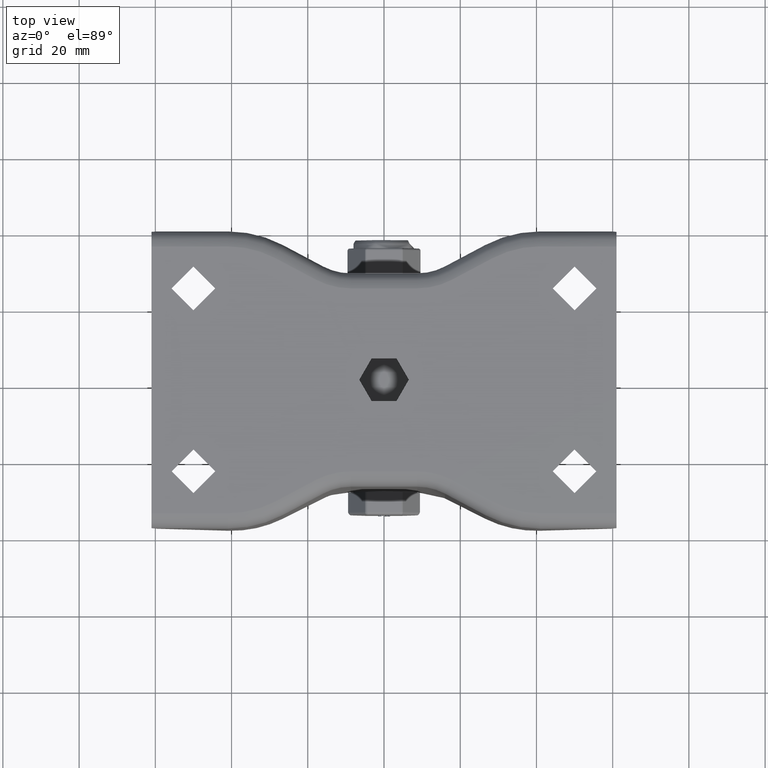
[diagram: clean part render]
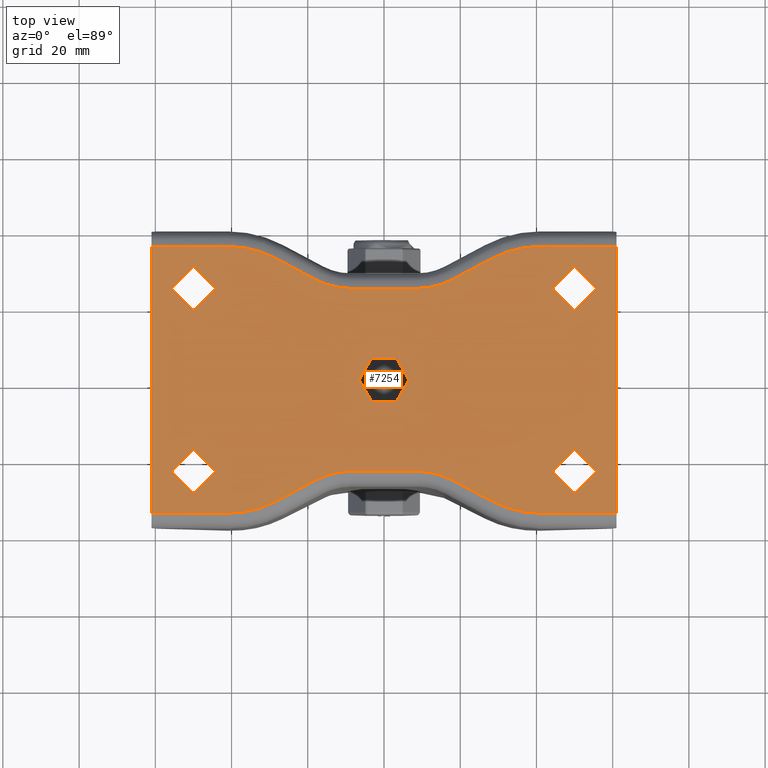
[diagram: same view with one face highlighted and labeled with its STEP entity id]
A machine part, top view. The second image highlights one B-rep face of the part: STEP entity #7254.
In plain terms, the highlighted planar face has unit normal (0, 0, -1).
Its self-contained STEP definition (entity closure, byte-faithful):
#699=FACE_BOUND('',#1503,.T.);
#700=FACE_BOUND('',#1504,.T.);
#701=FACE_BOUND('',#1505,.T.);
#702=FACE_BOUND('',#1506,.T.);
#703=FACE_BOUND('',#1507,.T.);
#746=CIRCLE('',#7764,5.75);
#748=CIRCLE('',#7767,5.75);
#757=CIRCLE('',#7805,26.5);
#760=CIRCLE('',#7810,19.5);
#763=CIRCLE('',#7815,19.5);
#766=CIRCLE('',#7820,26.5);
#769=CIRCLE('',#7825,6.5);
#774=CIRCLE('',#7833,5.75);
#776=CIRCLE('',#7836,5.75);
#783=CIRCLE('',#7856,26.5);
#784=CIRCLE('',#7857,19.5);
#785=CIRCLE('',#7858,19.5);
#786=CIRCLE('',#7859,26.5);
#787=CIRCLE('',#7860,6.5);
#1066=FACE_OUTER_BOUND('',#1502,.T.);
#1502=EDGE_LOOP('',(#5065,#5066,#5067,#5068,#5069,#5070,#5071,#5072,#5073,
#5074,#5075,#5076,#5077,#5078,#5079,#5080,#5081,#5082,#5083,#5084));
#1503=EDGE_LOOP('',(#5085,#5086));
#1504=EDGE_LOOP('',(#5087));
#1505=EDGE_LOOP('',(#5088));
#1506=EDGE_LOOP('',(#5089));
#1507=EDGE_LOOP('',(#5090));
#1978=LINE('',#10682,#2529);
#1979=LINE('',#10690,#2530);
#1980=LINE('',#10698,#2531);
#1981=LINE('',#10706,#2532);
#1982=LINE('',#10715,#2533);
#1994=LINE('',#10763,#2545);
#2010=LINE('',#10836,#2561);
#2011=LINE('',#10838,#2562);
#2012=LINE('',#10842,#2563);
#2013=LINE('',#10846,#2564);
#2014=LINE('',#10850,#2565);
#2015=LINE('',#10853,#2566);
#2529=VECTOR('',#8640,10.);
#2530=VECTOR('',#8651,10.);
#2531=VECTOR('',#8662,10.);
#2532=VECTOR('',#8673,10.);
#2533=VECTOR('',#8686,10.);
#2545=VECTOR('',#8732,1.);
#2561=VECTOR('',#8778,1.);
#2562=VECTOR('',#8779,10.);
#2563=VECTOR('',#8782,10.);
#2564=VECTOR('',#8785,10.);
#2565=VECTOR('',#8788,10.);
#2566=VECTOR('',#8791,10.);
#3050=VERTEX_POINT('',#10545);
#3052=VERTEX_POINT('',#10551);
#3082=VERTEX_POINT('',#10679);
#3083=VERTEX_POINT('',#10681);
#3084=VERTEX_POINT('',#10685);
#3085=VERTEX_POINT('',#10689);
#3086=VERTEX_POINT('',#10693);
#3087=VERTEX_POINT('',#10697);
#3088=VERTEX_POINT('',#10701);
#3089=VERTEX_POINT('',#10705);
#3090=VERTEX_POINT('',#10709);
#3091=VERTEX_POINT('',#10713);
#3093=VERTEX_POINT('',#10718);
#3094=VERTEX_POINT('',#10720);
#3105=VERTEX_POINT('',#10746);
#3107=VERTEX_POINT('',#10752);
#3110=VERTEX_POINT('',#10762);
#3128=VERTEX_POINT('',#10835);
#3129=VERTEX_POINT('',#10837);
#3130=VERTEX_POINT('',#10839);
#3131=VERTEX_POINT('',#10841);
#3132=VERTEX_POINT('',#10843);
#3133=VERTEX_POINT('',#10845);
#3134=VERTEX_POINT('',#10847);
#3135=VERTEX_POINT('',#10849);
#3136=VERTEX_POINT('',#10851);
#3748=EDGE_CURVE('',#3050,#3050,#746,.T.);
#3751=EDGE_CURVE('',#3052,#3052,#748,.T.);
#3802=EDGE_CURVE('',#3083,#3082,#1978,.T.);
#3804=EDGE_CURVE('',#3084,#3083,#757,.T.);
#3806=EDGE_CURVE('',#3085,#3084,#1979,.T.);
#3808=EDGE_CURVE('',#3086,#3085,#760,.T.);
#3810=EDGE_CURVE('',#3087,#3086,#1980,.T.);
#3812=EDGE_CURVE('',#3088,#3087,#763,.T.);
#3814=EDGE_CURVE('',#3089,#3088,#1981,.T.);
#3816=EDGE_CURVE('',#3090,#3089,#766,.T.);
#3819=EDGE_CURVE('',#3091,#3090,#1982,.T.);
#3821=EDGE_CURVE('',#3093,#3094,#769,.T.);
#3834=EDGE_CURVE('',#3105,#3105,#774,.T.);
#3837=EDGE_CURVE('',#3107,#3107,#776,.T.);
#3841=EDGE_CURVE('',#3110,#3091,#1994,.T.);
#3868=EDGE_CURVE('',#3082,#3128,#2010,.T.);
#3869=EDGE_CURVE('',#3129,#3128,#2011,.T.);
#3870=EDGE_CURVE('',#3130,#3129,#783,.T.);
#3871=EDGE_CURVE('',#3131,#3130,#2012,.T.);
#3872=EDGE_CURVE('',#3132,#3131,#784,.T.);
#3873=EDGE_CURVE('',#3133,#3132,#2013,.T.);
#3874=EDGE_CURVE('',#3134,#3133,#785,.T.);
#3875=EDGE_CURVE('',#3135,#3134,#2014,.T.);
#3876=EDGE_CURVE('',#3136,#3135,#786,.T.);
#3877=EDGE_CURVE('',#3110,#3136,#2015,.T.);
#3878=EDGE_CURVE('',#3093,#3094,#787,.T.);
#5065=ORIENTED_EDGE('',*,*,#3841,.T.);
#5066=ORIENTED_EDGE('',*,*,#3819,.T.);
#5067=ORIENTED_EDGE('',*,*,#3816,.T.);
#5068=ORIENTED_EDGE('',*,*,#3814,.T.);
#5069=ORIENTED_EDGE('',*,*,#3812,.T.);
#5070=ORIENTED_EDGE('',*,*,#3810,.T.);
#5071=ORIENTED_EDGE('',*,*,#3808,.T.);
#5072=ORIENTED_EDGE('',*,*,#3806,.T.);
#5073=ORIENTED_EDGE('',*,*,#3804,.T.);
#5074=ORIENTED_EDGE('',*,*,#3802,.T.);
#5075=ORIENTED_EDGE('',*,*,#3868,.T.);
#5076=ORIENTED_EDGE('',*,*,#3869,.F.);
#5077=ORIENTED_EDGE('',*,*,#3870,.F.);
#5078=ORIENTED_EDGE('',*,*,#3871,.F.);
#5079=ORIENTED_EDGE('',*,*,#3872,.F.);
#5080=ORIENTED_EDGE('',*,*,#3873,.F.);
#5081=ORIENTED_EDGE('',*,*,#3874,.F.);
#5082=ORIENTED_EDGE('',*,*,#3875,.F.);
#5083=ORIENTED_EDGE('',*,*,#3876,.F.);
#5084=ORIENTED_EDGE('',*,*,#3877,.F.);
#5085=ORIENTED_EDGE('',*,*,#3878,.T.);
#5086=ORIENTED_EDGE('',*,*,#3821,.F.);
#5087=ORIENTED_EDGE('',*,*,#3751,.F.);
#5088=ORIENTED_EDGE('',*,*,#3748,.F.);
#5089=ORIENTED_EDGE('',*,*,#3834,.T.);
#5090=ORIENTED_EDGE('',*,*,#3837,.T.);
#7064=PLANE('',#7855);
#7254=ADVANCED_FACE('',(#1066,#699,#700,#701,#702,#703),#7064,.F.);
#7764=AXIS2_PLACEMENT_3D('',#10547,#8531,#8532);
#7767=AXIS2_PLACEMENT_3D('',#10553,#8538,#8539);
#7805=AXIS2_PLACEMENT_3D('',#10686,#8645,#8646);
#7810=AXIS2_PLACEMENT_3D('',#10694,#8656,#8657);
#7815=AXIS2_PLACEMENT_3D('',#10702,#8667,#8668);
#7820=AXIS2_PLACEMENT_3D('',#10710,#8678,#8679);
#7825=AXIS2_PLACEMENT_3D('',#10721,#8690,#8691);
#7833=AXIS2_PLACEMENT_3D('',#10748,#8714,#8715);
#7836=AXIS2_PLACEMENT_3D('',#10754,#8721,#8722);
#7855=AXIS2_PLACEMENT_3D('',#10834,#8776,#8777);
#7856=AXIS2_PLACEMENT_3D('',#10840,#8780,#8781);
#7857=AXIS2_PLACEMENT_3D('',#10844,#8783,#8784);
#7858=AXIS2_PLACEMENT_3D('',#10848,#8786,#8787);
#7859=AXIS2_PLACEMENT_3D('',#10852,#8789,#8790);
#7860=AXIS2_PLACEMENT_3D('',#10854,#8792,#8793);
#8531=DIRECTION('center_axis',(0.,0.,1.));
#8532=DIRECTION('ref_axis',(1.,0.,0.));
#8538=DIRECTION('center_axis',(0.,0.,1.));
#8539=DIRECTION('ref_axis',(1.,0.,0.));
#8640=DIRECTION('',(-1.,0.,0.));
#8645=DIRECTION('center_axis',(0.,0.,1.));
#8646=DIRECTION('ref_axis',(0.241921895599667,0.970295726275997,0.));
#8651=DIRECTION('',(-0.882947592858926,0.469471562785892,0.));
#8656=DIRECTION('center_axis',(0.,0.,-1.));
#8657=DIRECTION('ref_axis',(-0.24192189559967,-0.970295726275996,0.));
#8662=DIRECTION('',(-1.,0.,0.));
#8667=DIRECTION('center_axis',(0.,0.,-1.));
#8668=DIRECTION('ref_axis',(0.241921895599665,-0.970295726275997,0.));
#8673=DIRECTION('',(-0.882947592858928,-0.469471562785889,0.));
#8678=DIRECTION('center_axis',(0.,0.,1.));
#8679=DIRECTION('ref_axis',(-0.241921895599667,0.970295726275996,0.));
#8686=DIRECTION('',(-1.,0.,0.));
#8690=DIRECTION('center_axis',(0.,0.,1.));
#8691=DIRECTION('ref_axis',(-1.,0.,0.));
#8714=DIRECTION('center_axis',(0.,0.,-1.));
#8715=DIRECTION('ref_axis',(1.,0.,0.));
#8721=DIRECTION('center_axis',(0.,0.,-1.));
#8722=DIRECTION('ref_axis',(1.,0.,0.));
#8732=DIRECTION('',(0.,1.,0.));
#8776=DIRECTION('center_axis',(0.,0.,-1.));
#8777=DIRECTION('ref_axis',(0.,-1.,0.));
#8778=DIRECTION('',(0.,-1.,0.));
#8779=DIRECTION('',(-1.,0.,0.));
#8780=DIRECTION('center_axis',(0.,0.,-1.));
#8781=DIRECTION('ref_axis',(0.241921895599667,-0.970295726275997,0.));
#8782=DIRECTION('',(-0.882947592858926,-0.469471562785892,0.));
#8783=DIRECTION('center_axis',(0.,0.,1.));
#8784=DIRECTION('ref_axis',(-0.24192189559967,0.970295726275996,0.));
#8785=DIRECTION('',(-1.,0.,0.));
#8786=DIRECTION('center_axis',(0.,0.,1.));
#8787=DIRECTION('ref_axis',(0.241921895599665,0.970295726275997,0.));
#8788=DIRECTION('',(-0.882947592858928,0.469471562785889,0.));
#8789=DIRECTION('center_axis',(0.,0.,-1.));
#8790=DIRECTION('ref_axis',(-0.241921895599667,-0.970295726275996,0.));
#8791=DIRECTION('',(-1.,0.,0.));
#8792=DIRECTION('center_axis',(0.,0.,-1.));
#8793=DIRECTION('ref_axis',(-1.,0.,0.));
#10545=CARTESIAN_POINT('',(536.793513280452,-26.1950614001457,0.));
#10547=CARTESIAN_POINT('Origin',(531.043513280452,-26.1950614001457,0.));
#10551=CARTESIAN_POINT('',(436.793513280452,-26.1950614001457,0.));
#10553=CARTESIAN_POINT('Origin',(431.043513280452,-26.1950614001457,0.));
#10679=CARTESIAN_POINT('',(420.043513280452,-15.1950614001456,0.));
#10681=CARTESIAN_POINT('',(440.166953390703,-15.1950614001456,0.));
#10682=CARTESIAN_POINT('',(440.166953390703,-15.1950614001456,0.));
#10685=CARTESIAN_POINT('',(452.607949804529,-18.2969501893841,0.));
#10686=CARTESIAN_POINT('Origin',(440.166953390703,-41.6950614001456,0.));
#10689=CARTESIAN_POINT('',(463.169337165974,-23.9125394608946,0.));
#10690=CARTESIAN_POINT('',(456.243007828074,-20.2297448251393,0.));
#10693=CARTESIAN_POINT('',(472.324032640299,-26.1950614001456,0.));
#10694=CARTESIAN_POINT('Origin',(472.324032640299,-6.6950614001456,0.));
#10697=CARTESIAN_POINT('',(489.762993920606,-26.1950614001456,0.));
#10698=CARTESIAN_POINT('',(460.605233335578,-26.1950614001456,0.));
#10701=CARTESIAN_POINT('',(498.917689394931,-23.9125394608947,0.));
#10702=CARTESIAN_POINT('Origin',(489.762993920606,-6.6950614001456,0.));
#10705=CARTESIAN_POINT('',(509.479076756376,-18.296950189384,0.));
#10706=CARTESIAN_POINT('',(477.611855707179,-35.2410521820833,0.));
#10709=CARTESIAN_POINT('',(521.920073170202,-15.1950614001456,0.));
#10710=CARTESIAN_POINT('Origin',(521.920073170202,-41.6950614001456,0.));
#10713=CARTESIAN_POINT('',(542.043513280452,-15.1950614001456,0.));
#10715=CARTESIAN_POINT('',(440.166953390703,-15.1950614001456,0.));
#10718=CARTESIAN_POINT('',(487.543513280408,-50.195085335039,0.));
#10720=CARTESIAN_POINT('',(474.543513280496,-50.195085335039,0.));
#10721=CARTESIAN_POINT('Origin',(481.043513280452,-50.1950614001457,0.));
#10746=CARTESIAN_POINT('',(536.793513280452,-74.1951092699323,0.));
#10748=CARTESIAN_POINT('Origin',(531.043513280452,-74.1951092699323,0.));
#10752=CARTESIAN_POINT('',(436.793513280452,-74.1951092699323,0.));
#10754=CARTESIAN_POINT('Origin',(431.043513280452,-74.1951092699323,0.));
#10762=CARTESIAN_POINT('',(542.043513280452,-85.1951092699324,0.));
#10763=CARTESIAN_POINT('',(542.043513280452,-85.6951092699324,0.));
#10834=CARTESIAN_POINT('Origin',(440.166953390703,-58.6951092699324,0.));
#10835=CARTESIAN_POINT('',(420.043513280452,-85.1951092699324,0.));
#10836=CARTESIAN_POINT('',(420.043513280452,-50.1951092699323,0.));
#10837=CARTESIAN_POINT('',(440.166953390703,-85.1951092699324,0.));
#10838=CARTESIAN_POINT('',(440.166953390703,-85.1951092699324,0.));
#10839=CARTESIAN_POINT('',(452.607949804529,-82.0932204806939,0.));
#10840=CARTESIAN_POINT('Origin',(440.166953390703,-58.6951092699324,0.));
#10841=CARTESIAN_POINT('',(463.169337165974,-76.4776312091834,0.));
#10842=CARTESIAN_POINT('',(456.243007828074,-80.1604258449387,0.));
#10843=CARTESIAN_POINT('',(472.324032640299,-74.1951092699324,0.));
#10844=CARTESIAN_POINT('Origin',(472.324032640299,-93.6951092699324,0.));
#10845=CARTESIAN_POINT('',(489.762993920606,-74.1951092699324,0.));
#10846=CARTESIAN_POINT('',(460.605233335578,-74.1951092699324,0.));
#10847=CARTESIAN_POINT('',(498.917689394931,-76.4776312091833,0.));
#10848=CARTESIAN_POINT('Origin',(489.762993920606,-93.6951092699324,0.));
#10849=CARTESIAN_POINT('',(509.479076756376,-82.093220480694,0.));
#10850=CARTESIAN_POINT('',(477.611855707179,-65.1491184879947,0.));
#10851=CARTESIAN_POINT('',(521.920073170202,-85.1951092699324,0.));
#10852=CARTESIAN_POINT('Origin',(521.920073170202,-58.6951092699324,0.));
#10853=CARTESIAN_POINT('',(440.166953390703,-85.1951092699324,0.));
#10854=CARTESIAN_POINT('Origin',(481.043513280452,-50.1951092699323,0.));